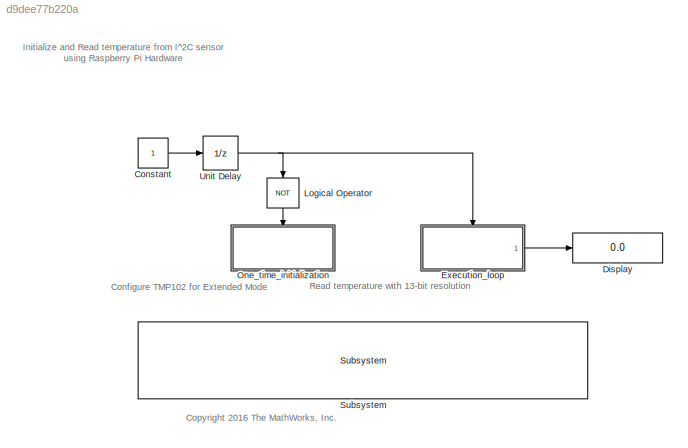
MODEL slx_d9dee77b220a
KIND model
CONFIG AbsTol = auto
CONFIG EnableMultiTasking = off
CONFIG FixedStep = auto
CONFIG MaxStep = auto
CONFIG MinStep = auto
CONFIG RelTol = 1e-3
CONFIG SampleTimeConstraint = Unconstrained
CONFIG Solver = FixedStepAuto
CONFIG SolverName = FixedStepAuto
CONFIG StartTime = 0.0
CONFIG StopTime = inf
BLOCK [Constant] Constant
  OutDataTypeStr = boolean
  SampleTime = 0.1
BLOCK [Display] Display
  Decimation = 1
  Ports = [1]
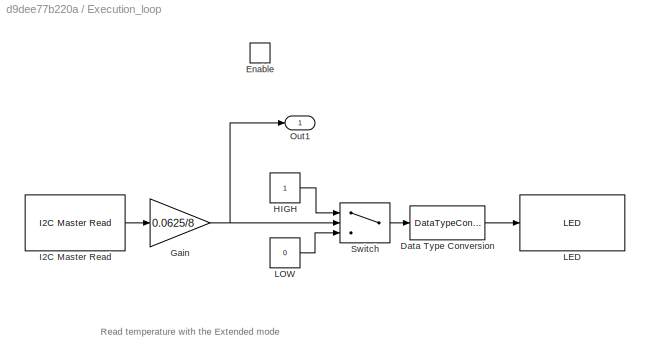
BLOCK [SubSystem] Execution_loop
  Ports = [0, 1, 1]
  RequestExecContextInheritance = off
  TreatAsAtomicUnit = on
BLOCK [DataTypeConversion] Execution_loop/Data Type Conversion
  OutDataTypeStr = boolean
  RndMeth = Floor
  SaturateOnIntegerOverflow = off
BLOCK [EnablePort] Execution_loop/Enable
  Ports = []
BLOCK [Gain] Execution_loop/Gain
  Gain = 0.0625/8
  OutDataTypeStr = single
  ParamDataTypeStr = Inherit: Inherit via internal rule
  SaturateOnIntegerOverflow = off
BLOCK [Constant] Execution_loop/HIGH
  OutDataTypeStr = uint8
BLOCK [Reference] Execution_loop/I2C Master Read  REF=raspberrypilib/I2C Master Read
  Ports = [0, 1]
  SourceBlock = raspberrypilib/I2C Master Read
  SourceProductBaseCode = RASPPI
  SourceProductName = Simulink Support Package for Raspberry Pi Hardware
  SourceType = codertarget.raspi.internal.I2CMasterRead
BLOCK [Reference] Execution_loop/LED  REF=embdlinuxlib/LED
  Ports = [1]
  SourceBlock = embdlinuxlib/LED
  SourceProductBaseCode = RASPPI
  SourceProductName = Simulink Support Package for Raspberry Pi Hardware
  SourceType = LED Write
BLOCK [Constant] Execution_loop/LOW
  OutDataTypeStr = uint8
  Value = 0
BLOCK [Outport] Execution_loop/Out1
  IconDisplay = Port number
  InitialOutput = 0
BLOCK [Switch] Execution_loop/Switch
  Criteria = u2 > Threshold
  InputSameDT = off
  SaturateOnIntegerOverflow = off
  Threshold = 27
BLOCK [Logic] Logical Operator
  AllPortsSameDT = off
  Operator = NOT
  OutDataTypeStr = boolean
  Ports = [1, 1]
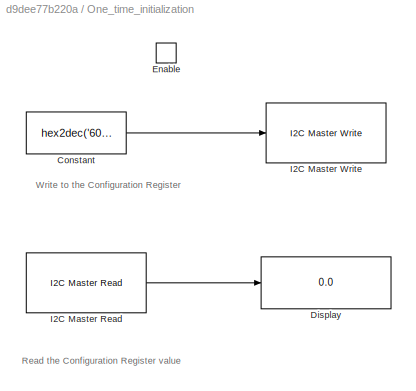
BLOCK [SubSystem] One_time_initialization
  Ports = [0, 0, 1]
  RTWSystemCode = Reusable function
  RequestExecContextInheritance = off
  TreatAsAtomicUnit = on
BLOCK [Constant] One_time_initialization/Constant
  OutDataTypeStr = uint16
  Value = hex2dec('60B0')
BLOCK [Display] One_time_initialization/Display
  Decimation = 1
  Format = hex (Stored Integer)
  Ports = [1]
BLOCK [EnablePort] One_time_initialization/Enable
  Ports = []
BLOCK [Reference] One_time_initialization/I2C Master Read  REF=raspberrypilib/I2C Master Read
  AttributesFormatString = Priority=%<Priority>
  Ports = [0, 1]
  Priority = 2
  SourceBlock = raspberrypilib/I2C Master Read
  SourceProductBaseCode = RASPPI
  SourceProductName = Simulink Support Package for Raspberry Pi Hardware
  SourceType = codertarget.raspi.internal.I2CMasterRead
BLOCK [Reference] One_time_initialization/I2C Master Write  REF=raspberrypilib/I2C Master Write
  AttributesFormatString = Priority=%<Priority>
  Ports = [1]
  Priority = 1
  SourceBlock = raspberrypilib/I2C Master Write
  SourceProductBaseCode = RASPPI
  SourceProductName = Simulink Support Package for Raspberry Pi Hardware
  SourceType = codertarget.raspi.internal.I2CMasterWrite
BLOCK [Reference] Subsystem  REF=realtime_examples_misc/Subsystem
  Ports = []
  SourceBlock = realtime_examples_misc/Subsystem
BLOCK [UnitDelay] Unit Delay
  InputProcessing = Elements as channels (sample based)
  SampleTime = -1
ANNOTATION (root): Configure TMP102 for Extended Mode
ANNOTATION (root): <copyright redacted>
ANNOTATION (root): Initialize and Read temperature from I^2C sensor using Raspberry Pi Hardware
ANNOTATION (root): Read temperature with 13-bit resolution
ANNOTATION Execution_loop: Read temperature with the Extended mode
ANNOTATION One_time_initialization: Read the Configuration Register value
ANNOTATION One_time_initialization: Write to the Configuration Register
LINE Constant:1 -> Unit Delay:1
LINE Execution_loop/Data Type Conversion:1 -> Execution_loop/LED:1
NET Execution_loop/Gain:1 -> Execution_loop/Out1:1, Execution_loop/Switch:2
LINE Execution_loop/HIGH:1 -> Execution_loop/Switch:1
LINE Execution_loop/I2C Master Read:1 -> Execution_loop/Gain:1
LINE Execution_loop/LOW:1 -> Execution_loop/Switch:3
LINE Execution_loop/Switch:1 -> Execution_loop/Data Type Conversion:1
LINE Execution_loop:1 -> Display:1
LINE Logical Operator:1 -> One_time_initialization:enable
LINE One_time_initialization/Constant:1 -> One_time_initialization/I2C Master Write:1
LINE One_time_initialization/I2C Master Read:1 -> One_time_initialization/Display:1
NET Unit Delay:1 -> Execution_loop:enable, Logical Operator:1
note: NET lines group one-source signal fan-out (src -> all destinations, sorted); 1:1 wires keep LINE
